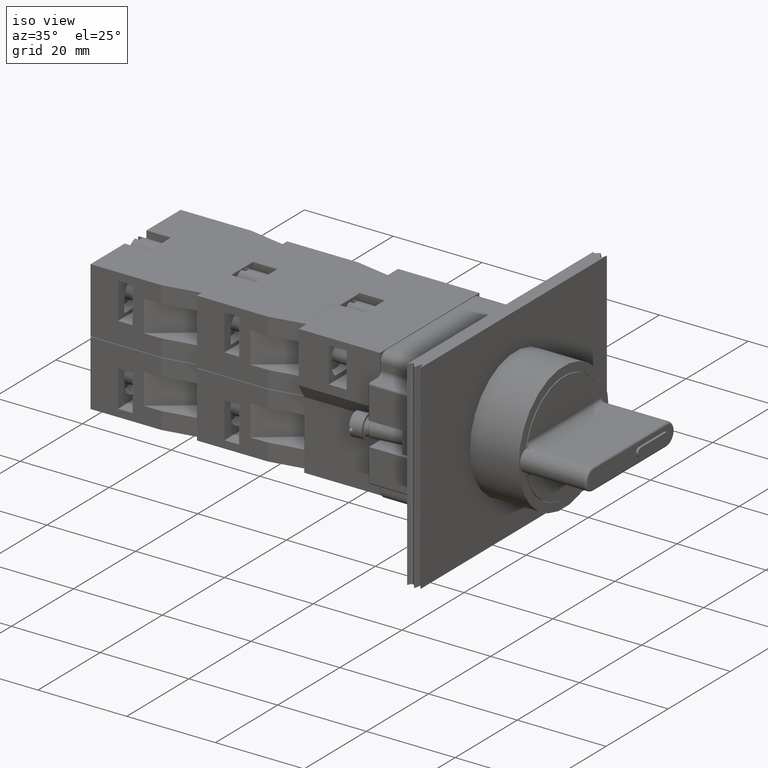
[diagram: clean part render]
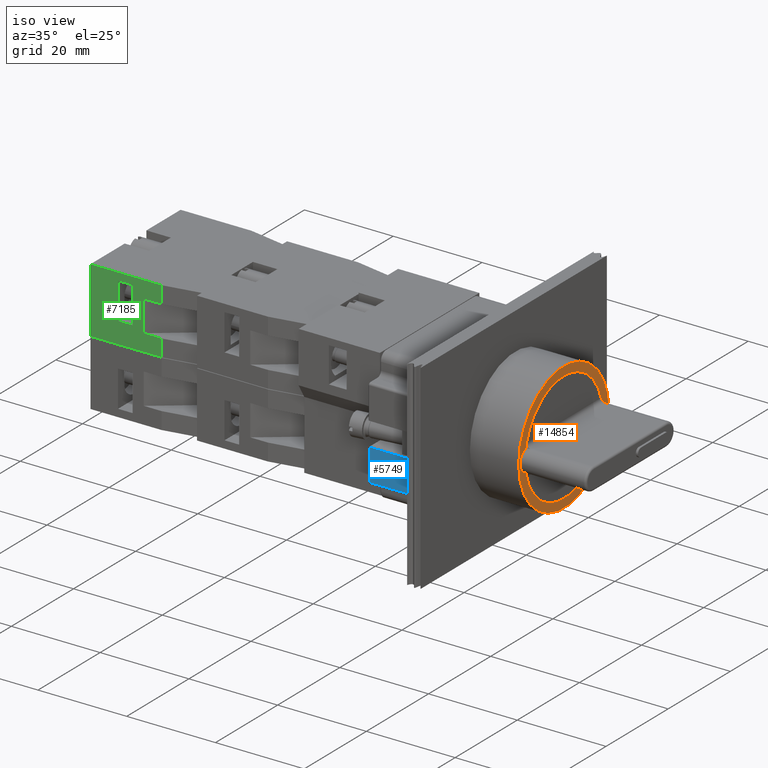
[diagram: same view with three faces highlighted in distinct colors, each labeled with its STEP entity id]
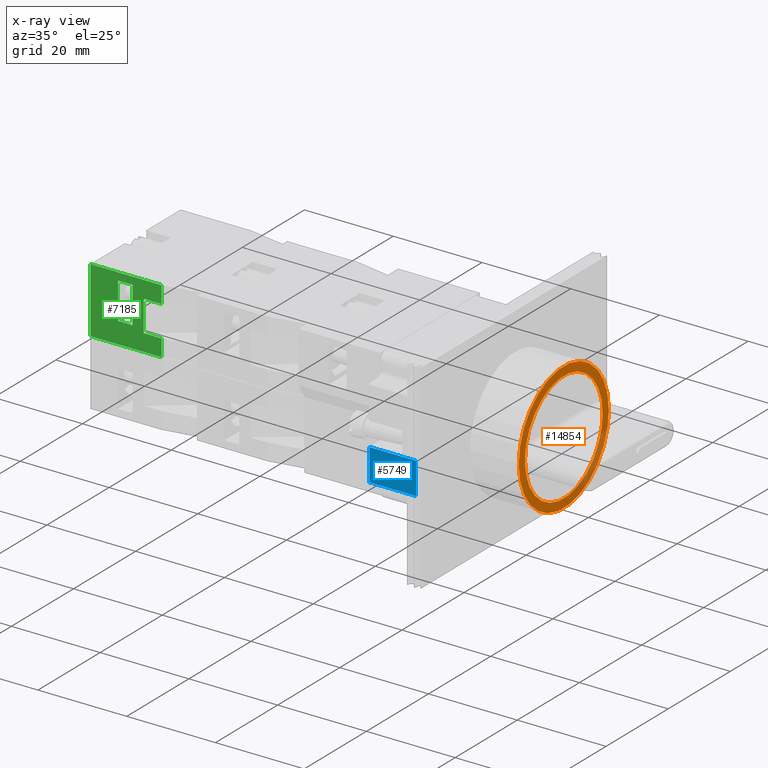
[diagram: x-ray of the same camera — body ghosted, the three highlighted faces saturated]
A machine part, iso view with three faces highlighted in distinct colors.
The next image is the same camera in x-ray (body ghosted, the three faces saturated) — at least one of them is partly hidden behind the body in this view.
Their STEP definitions:

[orange] entity #14854 — the highlighted planar face has unit normal (1, 0, 0).
#14820=CARTESIAN_POINT('',(2.879259947838931,14.423116139419637,0.0));
#14821=VERTEX_POINT('',#14820);
#14822=CARTESIAN_POINT('',(2.879259947838931,-0.076883860580367,0.0));
#14823=DIRECTION('',(1.0,0.0,0.0));
#14824=DIRECTION('',(0.0,1.0,0.0));
#14825=AXIS2_PLACEMENT_3D('',#14822,#14823,#14824);
#14826=CIRCLE('',#14825,14.500000000000004);
#14827=EDGE_CURVE('',#14821,#14821,#14826,.T.);
#14835=CARTESIAN_POINT('',(2.879259947838931,13.423116139419635,0.0));
#14836=DIRECTION('',(1.0,0.0,0.0));
#14837=DIRECTION('',(0.0,0.0,-1.0));
#14838=AXIS2_PLACEMENT_3D('',#14835,#14836,#14837);
#14839=PLANE('',#14838);
#14840=ORIENTED_EDGE('',*,*,#14827,.T.);
#14841=EDGE_LOOP('',(#14840));
#14842=FACE_OUTER_BOUND('',#14841,.T.);
#14843=CARTESIAN_POINT('',(2.879259947838931,12.423116139419633,0.0));
#14844=VERTEX_POINT('',#14843);
#14845=CARTESIAN_POINT('',(2.879259947838931,-0.076883860580367,0.0));
#14846=DIRECTION('',(1.0,0.0,0.0));
#14847=DIRECTION('',(0.0,1.0,0.0));
#14848=AXIS2_PLACEMENT_3D('',#14845,#14846,#14847);
#14849=CIRCLE('',#14848,12.500000000000002);
#14850=EDGE_CURVE('',#14844,#14844,#14849,.T.);
#14851=ORIENTED_EDGE('',*,*,#14850,.F.);
#14852=EDGE_LOOP('',(#14851));
#14853=FACE_BOUND('',#14852,.T.);
#14854=ADVANCED_FACE('',(#14842,#14853),#14839,.T.);

[blue] entity #5749 — the highlighted planar face has unit normal (0, -1, -0).
#881=CARTESIAN_POINT('',(-18.982780308276109,12.817864828157555,10.500000000000000));
#882=VERTEX_POINT('',#881);
#915=CARTESIAN_POINT('',(-18.982780308276109,20.017864828157556,10.500000000000000));
#916=VERTEX_POINT('',#915);
#924=CARTESIAN_POINT('',(-18.982780308276109,20.017864828157556,10.500000000000000));
#925=DIRECTION('',(0.0,-1.0,0.0));
#926=VECTOR('',#925,7.200000000000001);
#927=LINE('',#924,#926);
#928=EDGE_CURVE('',#916,#882,#927,.T.);
#4236=CARTESIAN_POINT('',(-18.982780308276109,12.817864828157555,0.0));
#4237=VERTEX_POINT('',#4236);
#4244=CARTESIAN_POINT('',(-18.982780308276109,20.017864828157556,0.0));
#4245=VERTEX_POINT('',#4244);
#4246=CARTESIAN_POINT('',(-18.982780308276109,20.017864828157556,0.0));
#4247=DIRECTION('',(0.0,-1.0,0.0));
#4248=VECTOR('',#4247,7.200000000000001);
#4249=LINE('',#4246,#4248);
#4250=EDGE_CURVE('',#4245,#4237,#4249,.T.);
#5720=CARTESIAN_POINT('',(-18.982780308276109,12.817864828157555,0.0));
#5721=DIRECTION('',(0.0,0.0,1.0));
#5722=VECTOR('',#5721,10.500000000000000);
#5723=LINE('',#5720,#5722);
#5724=EDGE_CURVE('',#4237,#882,#5723,.T.);
#5733=CARTESIAN_POINT('',(-18.982780308276109,12.817864828157555,0.0));
#5734=DIRECTION('',(-1.0,0.0,0.0));
#5735=DIRECTION('',(0.0,0.0,1.0));
#5736=AXIS2_PLACEMENT_3D('',#5733,#5734,#5735);
#5737=PLANE('',#5736);
#5738=ORIENTED_EDGE('',*,*,#928,.F.);
#5739=CARTESIAN_POINT('',(-18.982780308276109,20.017864828157556,0.0));
#5740=DIRECTION('',(0.0,0.0,1.0));
#5741=VECTOR('',#5740,10.500000000000000);
#5742=LINE('',#5739,#5741);
#5743=EDGE_CURVE('',#4245,#916,#5742,.T.);
#5744=ORIENTED_EDGE('',*,*,#5743,.F.);
#5745=ORIENTED_EDGE('',*,*,#4250,.T.);
#5746=ORIENTED_EDGE('',*,*,#5724,.T.);
#5747=EDGE_LOOP('',(#5738,#5744,#5745,#5746));
#5748=FACE_OUTER_BOUND('',#5747,.T.);
#5749=ADVANCED_FACE('',(#5748),#5737,.T.);

[green] entity #7185 — the highlighted planar face has unit normal (-0, -1, -0).
#7006=CARTESIAN_POINT('',(-44.936741828918457,7.797073323279618,10.850000000000000));
#7007=VERTEX_POINT('',#7006);
#7016=CARTESIAN_POINT('',(-44.936741828918457,11.797073323279610,10.850000000000000));
#7017=VERTEX_POINT('',#7016);
#7018=CARTESIAN_POINT('',(-44.936741828918457,11.797073323279610,10.850000000000000));
#7019=DIRECTION('',(0.0,-1.0,0.0));
#7020=VECTOR('',#7019,3.999999999999992);
#7021=LINE('',#7018,#7020);
#7022=EDGE_CURVE('',#7017,#7007,#7021,.T.);
#7046=CARTESIAN_POINT('',(-44.936741828918457,11.797073323279610,3.850000000000001));
#7047=VERTEX_POINT('',#7046);
#7063=CARTESIAN_POINT('',(-44.936741828918457,11.797073323279610,3.850000000000001));
#7064=DIRECTION('',(0.0,0.0,1.0));
#7065=VECTOR('',#7064,6.999999999999999);
#7066=LINE('',#7063,#7065);
#7067=EDGE_CURVE('',#7047,#7017,#7066,.T.);
#7079=CARTESIAN_POINT('',(-44.936741828918457,7.797073323279618,3.850000000000000));
#7080=VERTEX_POINT('',#7079);
#7094=CARTESIAN_POINT('',(-44.936741828918457,7.797073323279618,3.850000000000000));
#7095=DIRECTION('',(0.0,1.0,0.0));
#7096=VECTOR('',#7095,3.999999999999992);
#7097=LINE('',#7094,#7096);
#7098=EDGE_CURVE('',#7080,#7047,#7097,.T.);
#7103=CARTESIAN_POINT('',(-44.936741828918457,7.797073323279626,0.0));
#7104=DIRECTION('',(-1.0,0.0,0.0));
#7105=DIRECTION('',(0.0,0.0,1.0));
#7106=AXIS2_PLACEMENT_3D('',#7103,#7104,#7105);
#7107=PLANE('',#7106);
#7108=ORIENTED_EDGE('',*,*,#7098,.T.);
#7109=ORIENTED_EDGE('',*,*,#7067,.T.);
#7110=ORIENTED_EDGE('',*,*,#7022,.T.);
#7111=CARTESIAN_POINT('',(-44.936741828918457,7.797073323279626,14.699999999999999));
#7112=VERTEX_POINT('',#7111);
#7113=CARTESIAN_POINT('',(-44.936741828918457,7.797073323279618,10.850000000000000));
#7114=DIRECTION('',(0.0,0.0,1.0));
#7115=VECTOR('',#7114,3.850000000000000);
#7116=LINE('',#7113,#7115);
#7117=EDGE_CURVE('',#7007,#7112,#7116,.T.);
#7118=ORIENTED_EDGE('',*,*,#7117,.T.);
#7119=CARTESIAN_POINT('',(-44.936741828918471,23.797073323279623,14.699999999999999));
#7120=VERTEX_POINT('',#7119);
#7121=CARTESIAN_POINT('',(-44.936741828918457,7.797073323279626,14.699999999999999));
#7122=DIRECTION('',(0.0,1.0,0.0));
#7123=VECTOR('',#7122,15.999999999999996);
#7124=LINE('',#7121,#7123);
#7125=EDGE_CURVE('',#7112,#7120,#7124,.T.);
#7126=ORIENTED_EDGE('',*,*,#7125,.T.);
#7127=CARTESIAN_POINT('',(-44.936741828918471,23.797073323279623,0.0));
#7128=VERTEX_POINT('',#7127);
#7129=CARTESIAN_POINT('',(-44.936741828918471,23.797073323279623,0.0));
#7130=DIRECTION('',(0.0,0.0,1.0));
#7131=VECTOR('',#7130,14.699999999999999);
#7132=LINE('',#7129,#7131);
#7133=EDGE_CURVE('',#7128,#7120,#7132,.T.);
#7134=ORIENTED_EDGE('',*,*,#7133,.F.);
#7135=CARTESIAN_POINT('',(-44.936741828918457,7.797073323279626,0.0));
#7136=VERTEX_POINT('',#7135);
#7137=CARTESIAN_POINT('',(-44.936741828918457,7.797073323279626,0.0));
#7138=DIRECTION('',(0.0,1.0,0.0));
#7139=VECTOR('',#7138,15.999999999999996);
#7140=LINE('',#7137,#7139);
#7141=EDGE_CURVE('',#7136,#7128,#7140,.T.);
#7142=ORIENTED_EDGE('',*,*,#7141,.F.);
#7143=CARTESIAN_POINT('',(-44.936741828918457,7.797073323279626,0.0));
#7144=DIRECTION('',(0.0,0.0,1.0));
#7145=VECTOR('',#7144,3.850000000000000);
#7146=LINE('',#7143,#7145);
#7147=EDGE_CURVE('',#7136,#7080,#7146,.T.);
#7148=ORIENTED_EDGE('',*,*,#7147,.T.);
#7149=EDGE_LOOP('',(#7108,#7109,#7110,#7118,#7126,#7134,#7142,#7148));
#7150=FACE_OUTER_BOUND('',#7149,.T.);
#7151=CARTESIAN_POINT('',(-44.936741828918457,14.297073323279621,4.800000000000002));
#7152=VERTEX_POINT('',#7151);
#7153=CARTESIAN_POINT('',(-44.936741828918471,17.597073323279623,4.800000000000001));
#7154=VERTEX_POINT('',#7153);
#7155=CARTESIAN_POINT('',(-44.936741828918457,14.297073323279621,4.800000000000002));
#7156=DIRECTION('',(0.0,1.0,0.0));
#7157=VECTOR('',#7156,3.300000000000003);
#7158=LINE('',#7155,#7157);
#7159=EDGE_CURVE('',#7152,#7154,#7158,.T.);
#7160=ORIENTED_EDGE('',*,*,#7159,.T.);
#7161=CARTESIAN_POINT('',(-44.936741828918471,17.597073323279623,13.0));
#7162=VERTEX_POINT('',#7161);
#7163=CARTESIAN_POINT('',(-44.936741828918471,17.597073323279623,4.800000000000001));
#7164=DIRECTION('',(0.0,0.0,1.0));
#7165=VECTOR('',#7164,8.199999999999999);
#7166=LINE('',#7163,#7165);
#7167=EDGE_CURVE('',#7154,#7162,#7166,.T.);
#7168=ORIENTED_EDGE('',*,*,#7167,.T.);
#7169=CARTESIAN_POINT('',(-44.936741828918457,14.297073323279623,13.0));
#7170=VERTEX_POINT('',#7169);
#7171=CARTESIAN_POINT('',(-44.936741828918471,17.597073323279623,13.0));
#7172=DIRECTION('',(0.0,-1.0,0.0));
#7173=VECTOR('',#7172,3.300000000000001);
#7174=LINE('',#7171,#7173);
#7175=EDGE_CURVE('',#7162,#7170,#7174,.T.);
#7176=ORIENTED_EDGE('',*,*,#7175,.T.);
#7177=CARTESIAN_POINT('',(-44.936741828918457,14.297073323279623,13.0));
#7178=DIRECTION('',(0.0,0.0,-1.0));
#7179=VECTOR('',#7178,8.199999999999999);
#7180=LINE('',#7177,#7179);
#7181=EDGE_CURVE('',#7170,#7152,#7180,.T.);
#7182=ORIENTED_EDGE('',*,*,#7181,.T.);
#7183=EDGE_LOOP('',(#7160,#7168,#7176,#7182));
#7184=FACE_BOUND('',#7183,.T.);
#7185=ADVANCED_FACE('',(#7150,#7184),#7107,.T.);